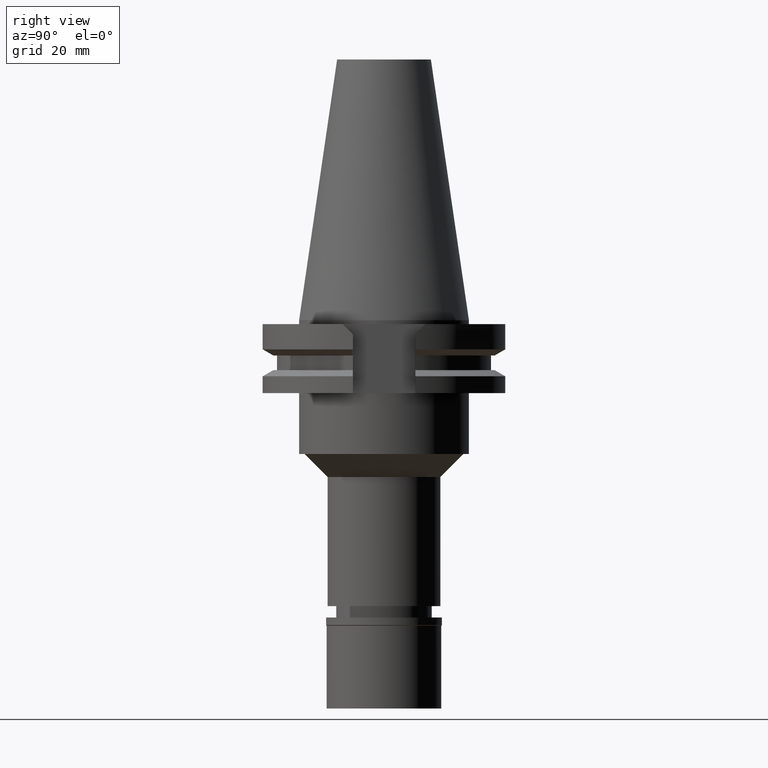
[diagram: clean part render]
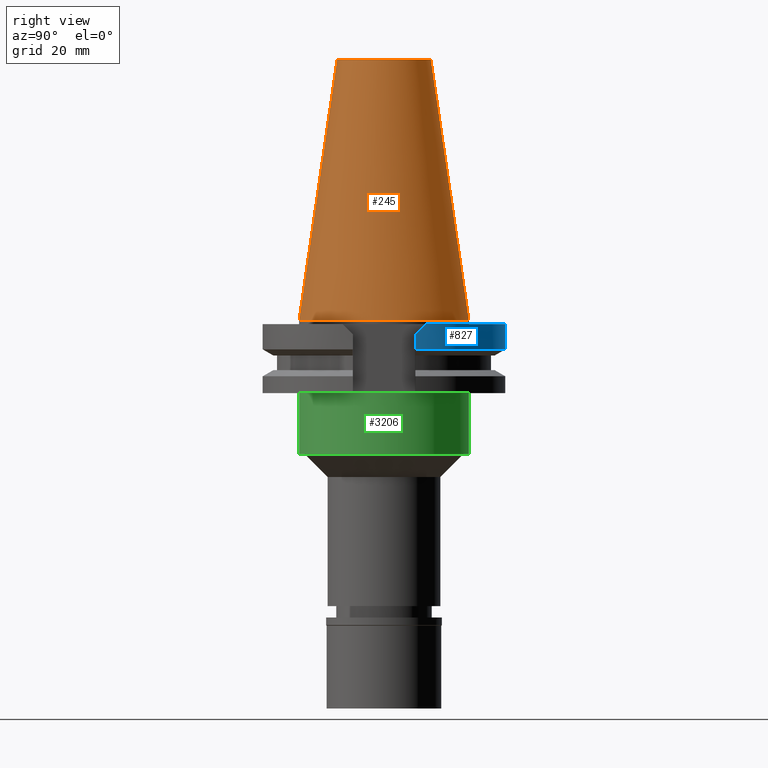
[diagram: same view with three faces highlighted in distinct colors, each labeled with its STEP entity id]
A machine part, right view with three faces highlighted in distinct colors.
Their STEP definitions:

[orange] entity #245 — the highlighted conical surface has half-angle 8.297 deg.
#10 = AXIS2_PLACEMENT_3D ( 'NONE', #1964, #1474, #2222 ) ;
#52 = CONICAL_SURFACE ( 'NONE', #1936, 17.24843444035000317, 0.1448125860318199565 ) ;
#219 = VERTEX_POINT ( 'NONE', #2778 ) ;
#245 = ADVANCED_FACE ( 'NONE', ( #1051 ), #52, .T. ) ;
#280 = VERTEX_POINT ( 'NONE', #3085 ) ;
#315 = CARTESIAN_POINT ( 'NONE',  ( 0.0000000000000000000, 0.0000000000000000000, 34.12500000000000000 ) ) ;
#366 = ORIENTED_EDGE ( 'NONE', *, *, #1651, .F. ) ;
#694 = EDGE_CURVE ( 'NONE', #982, #219, #2229, .T. ) ;
#697 = CARTESIAN_POINT ( 'NONE',  ( 0.0000000000000000000, -12.27186888070000137, 68.25000000000000000 ) ) ;
#770 = ORIENTED_EDGE ( 'NONE', *, *, #2320, .F. ) ;
#802 = AXIS2_PLACEMENT_3D ( 'NONE', #3012, #1218, #1484 ) ;
#919 = VERTEX_POINT ( 'NONE', #2327 ) ;
#932 = CIRCLE ( 'NONE', #10, 22.22500000000000142 ) ;
#982 = VERTEX_POINT ( 'NONE', #1402 ) ;
#1051 = FACE_OUTER_BOUND ( 'NONE', #1447, .T. ) ;
#1218 = DIRECTION ( 'NONE',  ( 0.0000000000000000000, 0.0000000000000000000, -1.000000000000000000 ) ) ;
#1232 = ORIENTED_EDGE ( 'NONE', *, *, #2574, .T. ) ;
#1299 = DIRECTION ( 'NONE',  ( 0.0000000000000000000, -1.000000000000000000, 0.0000000000000000000 ) ) ;
#1342 = CIRCLE ( 'NONE', #802, 12.27186888070000137 ) ;
#1402 = CARTESIAN_POINT ( 'NONE',  ( 0.0000000000000000000, -12.27186888070000137, 68.25000000000000000 ) ) ;
#1447 = EDGE_LOOP ( 'NONE', ( #1232, #3243, #366, #770 ) ) ;
#1474 = DIRECTION ( 'NONE',  ( 0.0000000000000000000, 0.0000000000000000000, -1.000000000000000000 ) ) ;
#1484 = DIRECTION ( 'NONE',  ( 0.0000000000000000000, 1.000000000000000000, 0.0000000000000000000 ) ) ;
#1651 = EDGE_CURVE ( 'NONE', #919, #219, #932, .T. ) ;
#1727 = DIRECTION ( 'NONE',  ( 0.0000000000000000000, -0.1443069799456937474, -0.9895329683941577192 ) ) ;
#1731 = VECTOR ( 'NONE', #1727, 1000.000000000000114 ) ;
#1841 = CARTESIAN_POINT ( 'NONE',  ( 0.0000000000000000000, 12.27186888070000137, 68.25000000000000000 ) ) ;
#1874 = LINE ( 'NONE', #1841, #2331 ) ;
#1936 = AXIS2_PLACEMENT_3D ( 'NONE', #315, #2819, #1299 ) ;
#1964 = CARTESIAN_POINT ( 'NONE',  ( 0.0000000000000000000, 0.0000000000000000000, -2.842170943040000381E-13 ) ) ;
#2222 = DIRECTION ( 'NONE',  ( 0.0000000000000000000, 1.000000000000000000, 0.0000000000000000000 ) ) ;
#2229 = LINE ( 'NONE', #697, #1731 ) ;
#2320 = EDGE_CURVE ( 'NONE', #280, #919, #1874, .T. ) ;
#2327 = CARTESIAN_POINT ( 'NONE',  ( 0.0000000000000000000, 22.22500000000000142, -1.278976924367999843E-13 ) ) ;
#2331 = VECTOR ( 'NONE', #2351, 1000.000000000000114 ) ;
#2351 = DIRECTION ( 'NONE',  ( 0.0000000000000000000, 0.1443069799456937474, -0.9895329683941577192 ) ) ;
#2574 = EDGE_CURVE ( 'NONE', #280, #982, #1342, .T. ) ;
#2778 = CARTESIAN_POINT ( 'NONE',  ( 0.0000000000000000000, -22.22500000000000142, -1.278976924367999843E-13 ) ) ;
#2819 = DIRECTION ( 'NONE',  ( 0.0000000000000000000, 0.0000000000000000000, -1.000000000000000000 ) ) ;
#3012 = CARTESIAN_POINT ( 'NONE',  ( 0.0000000000000000000, 0.0000000000000000000, 68.25000000000000000 ) ) ;
#3085 = CARTESIAN_POINT ( 'NONE',  ( 0.0000000000000000000, 12.27186888070000137, 68.25000000000000000 ) ) ;
#3243 = ORIENTED_EDGE ( 'NONE', *, *, #694, .T. ) ;

[blue] entity #827 — the highlighted cylindrical surface (partial cylindrical patch) has radius 31.75 mm, axis along (0, 0, -1).
#74 = ORIENTED_EDGE ( 'NONE', *, *, #1518, .F. ) ;
#102 = VERTEX_POINT ( 'NONE', #2537 ) ;
#246 = DIRECTION ( 'NONE',  ( 0.0000000000000000000, 0.0000000000000000000, -1.000000000000000000 ) ) ;
#249 = EDGE_CURVE ( 'NONE', #102, #2294, #479, .T. ) ;
#289 = LINE ( 'NONE', #1569, #1857 ) ;
#304 = CARTESIAN_POINT ( 'NONE',  ( 29.82399034335000110, 10.89000000000000057, -1.000000000001000089 ) ) ;
#373 = DIRECTION ( 'NONE',  ( -8.605275550058993810E-09, 3.223046685768998598E-08, 0.9999999999999994449 ) ) ;
#447 = CIRCLE ( 'NONE', #2122, 31.74999999999998579 ) ;
#479 = CIRCLE ( 'NONE', #2367, 31.75000000000000000 ) ;
#496 = ORIENTED_EDGE ( 'NONE', *, *, #249, .T. ) ;
#561 = CARTESIAN_POINT ( 'NONE',  ( 30.14799306409551960, 10.00266721625513888, -1.887332783744861242 ) ) ;
#763 = DIRECTION ( 'NONE',  ( 0.0000000000000000000, -1.000000000000000000, 0.0000000000000000000 ) ) ;
#827 = ADVANCED_FACE ( 'NONE', ( #1087 ), #2060, .T. ) ;
#832 = DIRECTION ( 'NONE',  ( 0.0000000000000000000, 1.000000000000000000, 0.0000000000000000000 ) ) ;
#979 = VECTOR ( 'NONE', #373, 1000.000000000000114 ) ;
#1031 = VERTEX_POINT ( 'NONE', #1367 ) ;
#1087 = FACE_OUTER_BOUND ( 'NONE', #2640, .T. ) ;
#1143 = AXIS2_PLACEMENT_3D ( 'NONE', #2307, #2801, #763 ) ;
#1305 = DIRECTION ( 'NONE',  ( 4.149961531741945011E-08, 1.554365163165979750E-07, -0.9999999999999870104 ) ) ;
#1362 = CARTESIAN_POINT ( 'NONE',  ( 30.67550165945999652, 8.189999874258001356, -7.601334354603999977 ) ) ;
#1367 = CARTESIAN_POINT ( 'NONE',  ( 30.67550165945999652, 8.189999874258001356, -7.601334354603999977 ) ) ;
#1370 = CARTESIAN_POINT ( 'NONE',  ( 29.82399034335000110, 10.89000000000000057, -1.000000000001000089 ) ) ;
#1518 = EDGE_CURVE ( 'NONE', #1031, #2938, #2615, .T. ) ;
#1569 = CARTESIAN_POINT ( 'NONE',  ( -30.67550162588999640, 8.189999999999999503, -3.700000000000000178 ) ) ;
#1675 = B_SPLINE_CURVE_WITH_KNOTS ( 'NONE', 3,
 ( #2725, #2712, #2251, #1951 ),
 .UNSPECIFIED., .F., .F.,
 ( 4, 4 ),
 ( 0.0000000000000000000, 1.000000000000000000 ),
 .UNSPECIFIED. ) ;
#1736 = EDGE_CURVE ( 'NONE', #102, #3273, #1675, .T. ) ;
#1850 = CARTESIAN_POINT ( 'NONE',  ( 30.67550162588999640, 8.189999999999999503, -3.700000000000000178 ) ) ;
#1857 = VECTOR ( 'NONE', #1305, 1000.000000000000227 ) ;
#1870 = CARTESIAN_POINT ( 'NONE',  ( 0.0000000000000000000, 0.0000000000000000000, -1.000000000000000000 ) ) ;
#1908 = CARTESIAN_POINT ( 'NONE',  ( 0.0000000000000000000, 0.0000000000000000000, -7.601333230925999551 ) ) ;
#1951 = CARTESIAN_POINT ( 'NONE',  ( -30.67550162588999640, 8.189999999999999503, -3.700000000000000178 ) ) ;
#2039 = VERTEX_POINT ( 'NONE', #2136 ) ;
#2060 = CYLINDRICAL_SURFACE ( 'NONE', #1143, 31.75000000000000000 ) ;
#2073 = EDGE_CURVE ( 'NONE', #1031, #2039, #447, .T. ) ;
#2122 = AXIS2_PLACEMENT_3D ( 'NONE', #1908, #3161, #2931 ) ;
#2136 = CARTESIAN_POINT ( 'NONE',  ( -30.67550146398999900, 8.190000606409000738, -7.601327811702999426 ) ) ;
#2214 = ORIENTED_EDGE ( 'NONE', *, *, #1736, .F. ) ;
#2251 = CARTESIAN_POINT ( 'NONE',  ( -30.43183015827551330, 9.102667216255303728, -2.787332783744695064 ) ) ;
#2294 = VERTEX_POINT ( 'NONE', #304 ) ;
#2300 = ORIENTED_EDGE ( 'NONE', *, *, #2073, .T. ) ;
#2307 = CARTESIAN_POINT ( 'NONE',  ( 0.0000000000000000000, 0.0000000000000000000, 76.24250000000000682 ) ) ;
#2328 = EDGE_CURVE ( 'NONE', #3273, #2039, #289, .T. ) ;
#2367 = AXIS2_PLACEMENT_3D ( 'NONE', #1870, #246, #832 ) ;
#2537 = CARTESIAN_POINT ( 'NONE',  ( -29.82399034335000110, 10.89000000000000057, -1.000000000000000000 ) ) ;
#2615 = LINE ( 'NONE', #1362, #979 ) ;
#2632 = B_SPLINE_CURVE_WITH_KNOTS ( 'NONE', 3,
 ( #3142, #2874, #561, #1370 ),
 .UNSPECIFIED., .F., .F.,
 ( 4, 4 ),
 ( 0.0000000000000000000, 1.000000000000000000 ),
 .UNSPECIFIED. ) ;
#2640 = EDGE_LOOP ( 'NONE', ( #2300, #3261, #2214, #496, #3039, #74 ) ) ;
#2712 = CARTESIAN_POINT ( 'NONE',  ( -30.14799306409551249, 10.00266721625513888, -1.887332783744861242 ) ) ;
#2725 = CARTESIAN_POINT ( 'NONE',  ( -29.82399034335000110, 10.89000000000000057, -1.000000000000000000 ) ) ;
#2801 = DIRECTION ( 'NONE',  ( 0.0000000000000000000, 0.0000000000000000000, -1.000000000000000000 ) ) ;
#2874 = CARTESIAN_POINT ( 'NONE',  ( 30.43183015827552040, 9.102667216255303728, -2.787332783744695064 ) ) ;
#2886 = CARTESIAN_POINT ( 'NONE',  ( -30.67550162588999640, 8.189999999999999503, -3.700000000000000178 ) ) ;
#2931 = DIRECTION ( 'NONE',  ( 0.9661575315241073270, 0.2579527559055020958, 0.0000000000000000000 ) ) ;
#2938 = VERTEX_POINT ( 'NONE', #1850 ) ;
#2940 = EDGE_CURVE ( 'NONE', #2938, #2294, #2632, .T. ) ;
#3039 = ORIENTED_EDGE ( 'NONE', *, *, #2940, .F. ) ;
#3142 = CARTESIAN_POINT ( 'NONE',  ( 30.67550162588999640, 8.189999999999999503, -3.700000000000000178 ) ) ;
#3161 = DIRECTION ( 'NONE',  ( 0.0000000000000000000, 0.0000000000000000000, 1.000000000000000000 ) ) ;
#3261 = ORIENTED_EDGE ( 'NONE', *, *, #2328, .F. ) ;
#3273 = VERTEX_POINT ( 'NONE', #2886 ) ;

[green] entity #3206 — the highlighted cylindrical surface (partial cylindrical patch) has radius 22.225 mm, axis along (0, 0, -1).
#34 = EDGE_CURVE ( 'NONE', #1297, #1268, #2125, .T. ) ;
#77 = VERTEX_POINT ( 'NONE', #3108 ) ;
#152 = DIRECTION ( 'NONE',  ( 0.0000000000000000000, 0.0000000000000000000, -1.000000000000000000 ) ) ;
#504 = DIRECTION ( 'NONE',  ( 0.0000000000000000000, 0.0000000000000000000, 1.000000000000000000 ) ) ;
#573 = EDGE_LOOP ( 'NONE', ( #2187, #1142, #3104, #3063 ) ) ;
#672 = DIRECTION ( 'NONE',  ( 0.0000000000000000000, 0.0000000000000000000, -1.000000000000000000 ) ) ;
#674 = DIRECTION ( 'NONE',  ( 0.0000000000000000000, 1.000000000000000000, 0.0000000000000000000 ) ) ;
#680 = DIRECTION ( 'NONE',  ( 0.0000000000000000000, 0.0000000000000000000, -1.000000000000000000 ) ) ;
#695 = LINE ( 'NONE', #1726, #3181 ) ;
#700 = CIRCLE ( 'NONE', #2580, 22.22500000000000142 ) ;
#793 = AXIS2_PLACEMENT_3D ( 'NONE', #1810, #2828, #2582 ) ;
#868 = CARTESIAN_POINT ( 'NONE',  ( 0.0000000000000000000, -22.22500000000000142, -35.00000000000000000 ) ) ;
#1142 = ORIENTED_EDGE ( 'NONE', *, *, #2979, .T. ) ;
#1257 = CARTESIAN_POINT ( 'NONE',  ( 0.0000000000000000000, 22.22500000000000142, -19.05000000000000071 ) ) ;
#1268 = VERTEX_POINT ( 'NONE', #2070 ) ;
#1297 = VERTEX_POINT ( 'NONE', #1257 ) ;
#1304 = EDGE_CURVE ( 'NONE', #2825, #1268, #3189, .T. ) ;
#1571 = CARTESIAN_POINT ( 'NONE',  ( 0.0000000000000000000, 0.0000000000000000000, -35.00000000000000000 ) ) ;
#1726 = CARTESIAN_POINT ( 'NONE',  ( 0.0000000000000000000, -22.22500000000000142, -19.05000000000000071 ) ) ;
#1810 = CARTESIAN_POINT ( 'NONE',  ( 0.0000000000000000000, 0.0000000000000000000, 76.24250000000000682 ) ) ;
#2070 = CARTESIAN_POINT ( 'NONE',  ( 0.0000000000000000000, 22.22500000000000142, -35.00000000000000000 ) ) ;
#2125 = LINE ( 'NONE', #2882, #2301 ) ;
#2187 = ORIENTED_EDGE ( 'NONE', *, *, #2515, .T. ) ;
#2301 = VECTOR ( 'NONE', #672, 1000.000000000000000 ) ;
#2302 = DIRECTION ( 'NONE',  ( 0.0000000000000000000, -1.000000000000000000, 0.0000000000000000000 ) ) ;
#2458 = CARTESIAN_POINT ( 'NONE',  ( 0.0000000000000000000, 0.0000000000000000000, -19.05000000000000071 ) ) ;
#2515 = EDGE_CURVE ( 'NONE', #1297, #77, #700, .T. ) ;
#2563 = CYLINDRICAL_SURFACE ( 'NONE', #793, 22.22500000000000142 ) ;
#2580 = AXIS2_PLACEMENT_3D ( 'NONE', #2458, #152, #674 ) ;
#2582 = DIRECTION ( 'NONE',  ( 0.0000000000000000000, -1.000000000000000000, 0.0000000000000000000 ) ) ;
#2825 = VERTEX_POINT ( 'NONE', #868 ) ;
#2828 = DIRECTION ( 'NONE',  ( 0.0000000000000000000, 0.0000000000000000000, -1.000000000000000000 ) ) ;
#2882 = CARTESIAN_POINT ( 'NONE',  ( 0.0000000000000000000, 22.22500000000000142, -19.05000000000000071 ) ) ;
#2920 = AXIS2_PLACEMENT_3D ( 'NONE', #1571, #504, #2302 ) ;
#2979 = EDGE_CURVE ( 'NONE', #77, #2825, #695, .T. ) ;
#3063 = ORIENTED_EDGE ( 'NONE', *, *, #34, .F. ) ;
#3096 = FACE_OUTER_BOUND ( 'NONE', #573, .T. ) ;
#3104 = ORIENTED_EDGE ( 'NONE', *, *, #1304, .T. ) ;
#3108 = CARTESIAN_POINT ( 'NONE',  ( 0.0000000000000000000, -22.22500000000000142, -19.05000000000000071 ) ) ;
#3181 = VECTOR ( 'NONE', #680, 1000.000000000000000 ) ;
#3189 = CIRCLE ( 'NONE', #2920, 22.22500000000000142 ) ;
#3206 = ADVANCED_FACE ( 'NONE', ( #3096 ), #2563, .T. ) ;